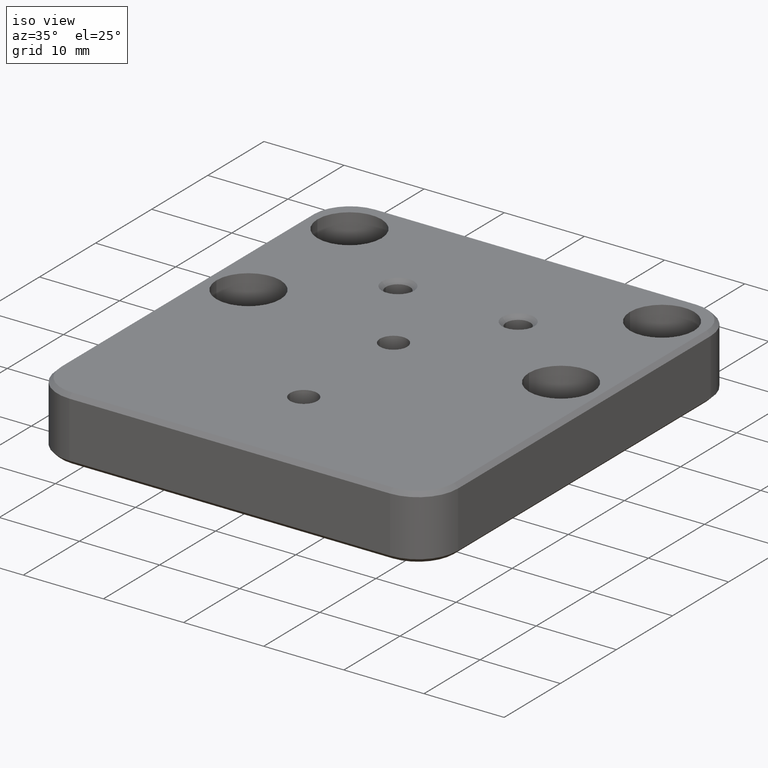
[diagram: clean part render]
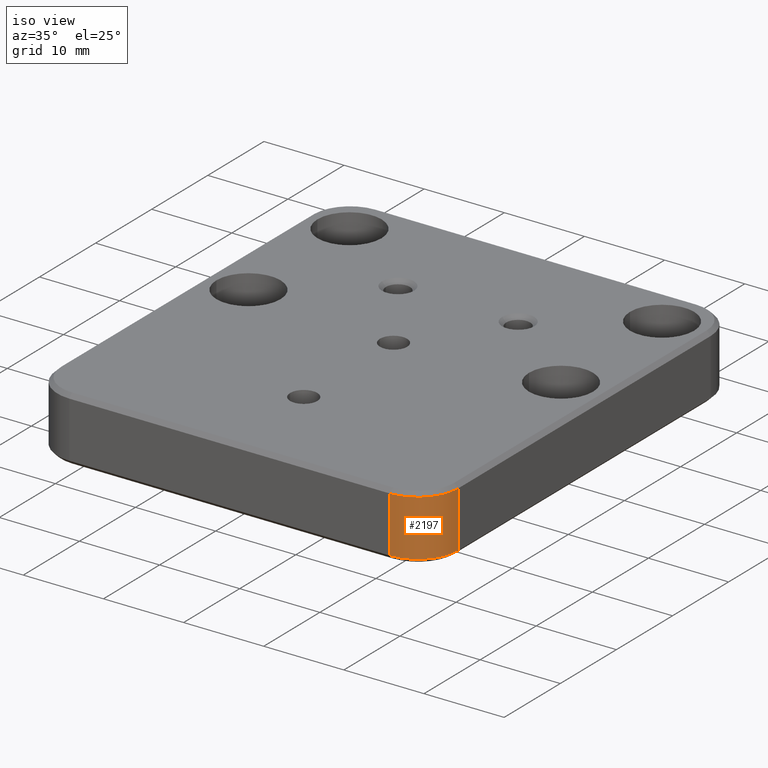
[diagram: same view with one face highlighted and labeled with its STEP entity id]
A machine part, iso view. The second image highlights one B-rep face of the part: STEP entity #2197.
In plain terms, the highlighted cylindrical surface (partial cylindrical patch) has radius 5 mm, axis along (0, 0, -1).
Its self-contained STEP definition (entity closure, byte-faithful):
#34 = CARTESIAN_POINT ( 'NONE',  ( 20.00000000000000000, -22.49999999999999645, 7.499999999999992895 ) ) ;
#105 = VERTEX_POINT ( 'NONE', #2173 ) ;
#190 = ORIENTED_EDGE ( 'NONE', *, *, #806, .T. ) ;
#271 = AXIS2_PLACEMENT_3D ( 'NONE', #463, #282, #1277 ) ;
#282 = DIRECTION ( 'NONE',  ( 0.0000000000000000000, 0.0000000000000000000, -1.000000000000000000 ) ) ;
#297 = VECTOR ( 'NONE', #1783, 1000.000000000000000 ) ;
#303 = ORIENTED_EDGE ( 'NONE', *, *, #357, .T. ) ;
#357 = EDGE_CURVE ( 'NONE', #1858, #540, #962, .T. ) ;
#373 = CARTESIAN_POINT ( 'NONE',  ( 19.99999999999999645, -27.49999999999999289, 0.4999999999999935052 ) ) ;
#423 = CARTESIAN_POINT ( 'NONE',  ( 25.00000000000000000, -22.49999999999999645, 8.000000000000000000 ) ) ;
#445 = CARTESIAN_POINT ( 'NONE',  ( 19.99999999999999645, -27.49999999999999289, 8.000000000000000000 ) ) ;
#456 = EDGE_CURVE ( 'NONE', #646, #540, #1269, .T. ) ;
#463 = CARTESIAN_POINT ( 'NONE',  ( 20.00000000000000000, -22.49999999999999645, 8.000000000000000000 ) ) ;
#540 = VERTEX_POINT ( 'NONE', #1132 ) ;
#598 = ORIENTED_EDGE ( 'NONE', *, *, #456, .F. ) ;
#646 = VERTEX_POINT ( 'NONE', #690 ) ;
#690 = CARTESIAN_POINT ( 'NONE',  ( 25.00000000000000000, -22.49999999999999645, 7.499999999999992895 ) ) ;
#744 = DIRECTION ( 'NONE',  ( 1.000000000000000000, 0.0000000000000000000, 0.0000000000000000000 ) ) ;
#764 = LINE ( 'NONE', #445, #1001 ) ;
#806 = EDGE_CURVE ( 'NONE', #646, #105, #2074, .T. ) ;
#918 = DIRECTION ( 'NONE',  ( 0.0000000000000000000, 0.0000000000000000000, -1.000000000000000000 ) ) ;
#962 = CIRCLE ( 'NONE', #1857, 5.000000000000000888 ) ;
#963 = EDGE_CURVE ( 'NONE', #1858, #105, #764, .T. ) ;
#974 = FACE_OUTER_BOUND ( 'NONE', #1702, .T. ) ;
#1001 = VECTOR ( 'NONE', #1451, 1000.000000000000000 ) ;
#1071 = AXIS2_PLACEMENT_3D ( 'NONE', #34, #918, #744 ) ;
#1132 = CARTESIAN_POINT ( 'NONE',  ( 25.00000000000000000, -22.49999999999999645, 0.4999999999999935052 ) ) ;
#1269 = LINE ( 'NONE', #423, #297 ) ;
#1277 = DIRECTION ( 'NONE',  ( -1.000000000000000000, 0.0000000000000000000, 0.0000000000000000000 ) ) ;
#1404 = CARTESIAN_POINT ( 'NONE',  ( 20.00000000000000000, -22.49999999999999645, 0.4999999999999935052 ) ) ;
#1451 = DIRECTION ( 'NONE',  ( -0.0000000000000000000, -0.0000000000000000000, 1.000000000000000000 ) ) ;
#1571 = ORIENTED_EDGE ( 'NONE', *, *, #963, .F. ) ;
#1702 = EDGE_LOOP ( 'NONE', ( #1571, #303, #598, #190 ) ) ;
#1783 = DIRECTION ( 'NONE',  ( 0.0000000000000000000, 0.0000000000000000000, -1.000000000000000000 ) ) ;
#1857 = AXIS2_PLACEMENT_3D ( 'NONE', #1404, #1944, #1932 ) ;
#1858 = VERTEX_POINT ( 'NONE', #373 ) ;
#1932 = DIRECTION ( 'NONE',  ( 1.000000000000000000, 0.0000000000000000000, 0.0000000000000000000 ) ) ;
#1944 = DIRECTION ( 'NONE',  ( 0.0000000000000000000, 0.0000000000000000000, 1.000000000000000000 ) ) ;
#1994 = CYLINDRICAL_SURFACE ( 'NONE', #271, 5.000000000000000888 ) ;
#2074 = CIRCLE ( 'NONE', #1071, 5.000000000000000888 ) ;
#2173 = CARTESIAN_POINT ( 'NONE',  ( 19.99999999999999645, -27.49999999999999289, 7.499999999999992895 ) ) ;
#2197 = ADVANCED_FACE ( 'NONE', ( #974 ), #1994, .T. ) ;